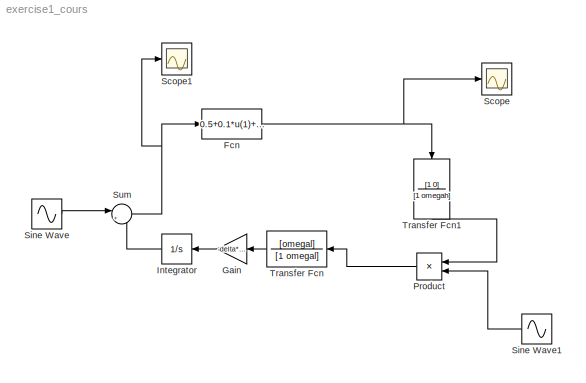
MODEL exercise1_cours
KIND model
BLOCK [Fcn] Fcn
  Expr = 0.5+0.1*u(1)+0.2*u(1)^2
  SID = 1
BLOCK [Gain] Gain
  Gain = -delta*omega*Kprime
  OutDataTypeStr = Inherit: Inherit via internal rule
  ParamDataTypeStr = Inherit: Inherit via internal rule
  SID = 10
  SaturateOnIntegerOverflow = off
BLOCK [Integrator] Integrator
  Ports = [1, 1]
  SID = 11
BLOCK [Product] Product
  InputSameDT = off
  OutDataTypeStr = Inherit: Inherit via internal rule
  Ports = [2, 1]
  RndMeth = Floor
  SID = 6
  SaturateOnIntegerOverflow = off
BLOCK [Scope] Scope
  NumInputPorts = 1
  Ports = [1]
  SID = 8
  ScopeSpecificationString = Simulink.scopes.TimeScopeBlockCfg('CurrentConfiguration', extmgr.ConfigurationSet(extmgr.Configuration('Core','General UI',true),extmgr.Configuration('Core','Source UI',true),extmgr.Configuration('Sources','WiredSimulink',true),extmgr.Configuration('Visuals','Time Domain',true,'SerializedDisplays',{struct('MinYLimReal','0.47322','MaxYLimReal','0.61601','YLabelReal','','MinYLimMag','0.47322','MaxYL...<+1375ch>
BLOCK [Scope] Scope1
  NumInputPorts = 1
  Ports = [1]
  SID = 9
  ScopeSpecificationString = Simulink.scopes.TimeScopeBlockCfg('CurrentConfiguration', extmgr.ConfigurationSet(extmgr.Configuration('Core','General UI',true),extmgr.Configuration('Core','Source UI',true),extmgr.Configuration('Sources','WiredSimulink',true,'DataLoggingVariableName','ScopeData1'),extmgr.Configuration('Visuals','Time Domain',true,'SerializedDisplays',{struct('MinYLimReal','-1.13334','MaxYLimReal','0.14261','YLab...<+1416ch>
BLOCK [Sin] Sine Wave
  Amplitude = a
  Frequency = omega
  Ports = [0, 1]
  SID = 4
  SampleTime = 0
BLOCK [Sin] Sine Wave1
  Amplitude = 1/a
  Frequency = omega
  Ports = [0, 1]
  SID = 5
  SampleTime = 0
BLOCK [Sum] Sum
  IconShape = round
  InputSameDT = off
  Inputs = |++
  OutDataTypeStr = Inherit: Inherit via internal rule
  Ports = [2, 1]
  SID = 7
  SaturateOnIntegerOverflow = off
BLOCK [TransferFcn] Transfer Fcn
  Denominator = [1 omegal]
  Numerator = [omegal]
  SID = 2
BLOCK [TransferFcn] Transfer Fcn1
  Denominator = [1 omegah]
  Numerator = [1 0]
  SID = 3
NET Fcn:1 -> Scope:1, Transfer Fcn1:1
LINE Gain:1 -> Integrator:1
LINE Integrator:1 -> Sum:2
LINE Product:1 -> Transfer Fcn:1
LINE Sine Wave1:1 -> Product:2
LINE Sine Wave:1 -> Sum:1
NET Sum:1 -> Fcn:1, Scope1:1
LINE Transfer Fcn1:1 -> Product:1
LINE Transfer Fcn:1 -> Gain:1
note: NET lines group one-source signal fan-out (src -> all destinations, sorted); 1:1 wires keep LINE
